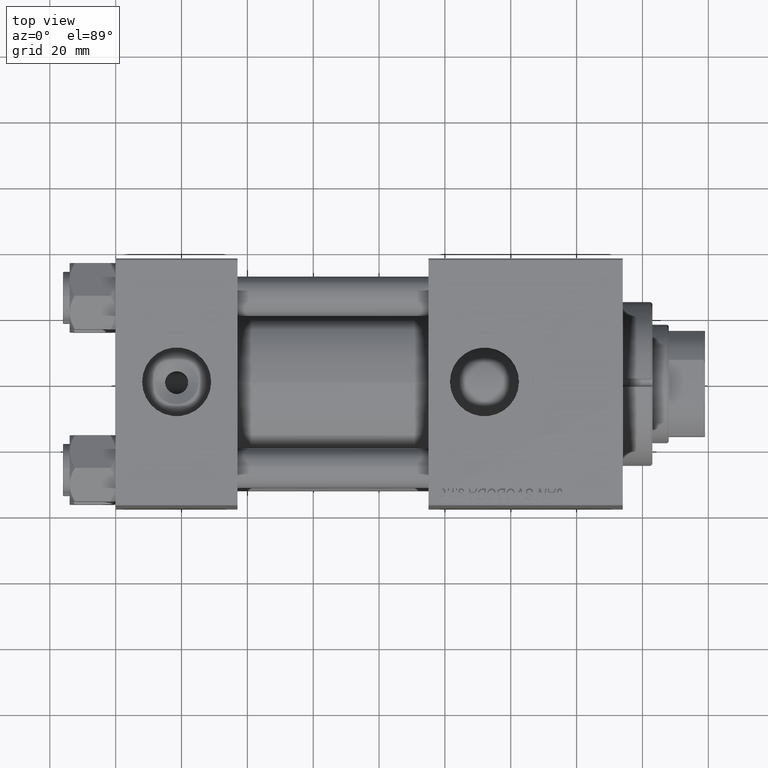
[diagram: clean part render]
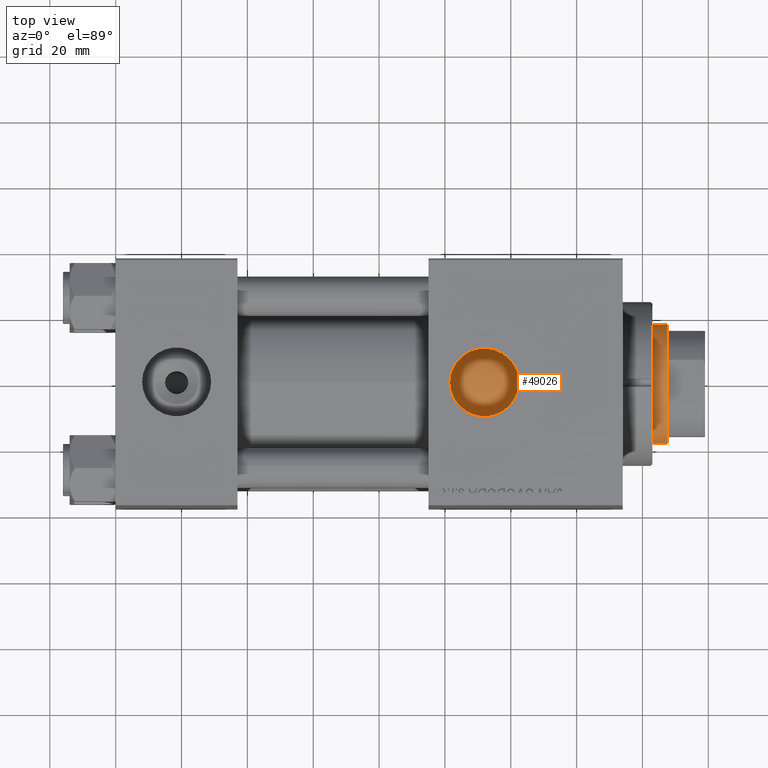
[diagram: same view with one face highlighted and labeled with its STEP entity id]
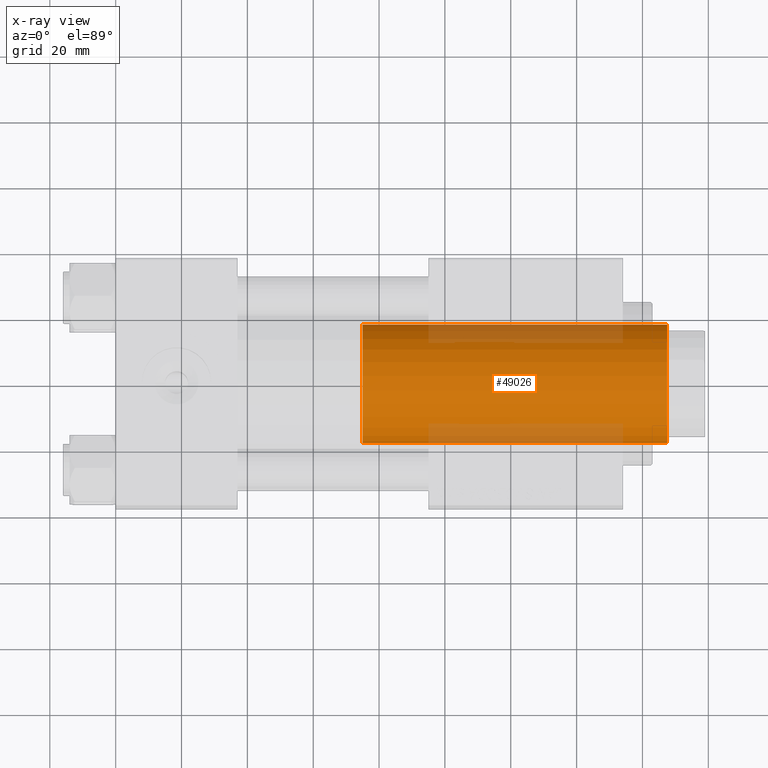
[diagram: x-ray of the same camera — body ghosted, the highlighted face saturated]
A machine part, top view. The second image highlights one B-rep face of the part: STEP entity #49026.
The next image is the same camera in x-ray: the body ghosted, the highlighted face saturated — about 20% of this face is hidden behind the body in this view.
In plain terms, the highlighted cylindrical surface (partial cylindrical patch) has radius 18 mm, axis along (-1, 0, 0).
Its self-contained STEP definition (entity closure, byte-faithful):
#719 = EDGE_CURVE ( 'NONE', #37747, #27761, #29014, .T. ) ;
#1033 = CARTESIAN_POINT ( 'NONE',  ( 18.00000000000000000, 2.204364238465235033E-15, 38.00000000000000000 ) ) ;
#1577 = CARTESIAN_POINT ( 'NONE',  ( -18.00000000000000000, 0.000000000000000000, 38.00000000000000000 ) ) ;
#6766 = EDGE_LOOP ( 'NONE', ( #46518, #40399, #31976, #34243 ) ) ;
#6811 = DIRECTION ( 'NONE',  ( -1.000000000000000000, 0.000000000000000000, 0.000000000000000000 ) ) ;
#7063 = FACE_OUTER_BOUND ( 'NONE', #6766, .T. ) ;
#8800 = DIRECTION ( 'NONE',  ( 0.000000000000000000, 0.000000000000000000, 1.000000000000000000 ) ) ;
#10140 = DIRECTION ( 'NONE',  ( -0.000000000000000000, -0.000000000000000000, -1.000000000000000000 ) ) ;
#13050 = CARTESIAN_POINT ( 'NONE',  ( 18.00000000000000000, 2.204364238465235033E-15, 130.5000000000000568 ) ) ;
#14871 = DIRECTION ( 'NONE',  ( -0.000000000000000000, -0.000000000000000000, -1.000000000000000000 ) ) ;
#17310 = CARTESIAN_POINT ( 'NONE',  ( -18.00000000000000000, 0.000000000000000000, 130.5000000000000568 ) ) ;
#17473 = EDGE_CURVE ( 'NONE', #37747, #31387, #38499, .T. ) ;
#17890 = AXIS2_PLACEMENT_3D ( 'NONE', #22123, #10140, #6811 ) ;
#18449 = CARTESIAN_POINT ( 'NONE',  ( -18.00000000000000000, 0.000000000000000000, 131.0000000000000000 ) ) ;
#20325 = CIRCLE ( 'NONE', #29263, 18.00000000000000000 ) ;
#20528 = DIRECTION ( 'NONE',  ( 1.000000000000000000, 0.000000000000000000, 0.000000000000000000 ) ) ;
#21370 = DIRECTION ( 'NONE',  ( -0.000000000000000000, -0.000000000000000000, -1.000000000000000000 ) ) ;
#21819 = VECTOR ( 'NONE', #14871, 1000.000000000000000 ) ;
#22123 = CARTESIAN_POINT ( 'NONE',  ( 0.000000000000000000, 0.000000000000000000, 131.0000000000000000 ) ) ;
#23535 = CARTESIAN_POINT ( 'NONE',  ( 0.000000000000000000, 0.000000000000000000, 130.5000000000000568 ) ) ;
#24029 = DIRECTION ( 'NONE',  ( 0.000000000000000000, 0.000000000000000000, -1.000000000000000000 ) ) ;
#27761 = VERTEX_POINT ( 'NONE', #1033 ) ;
#28101 = DIRECTION ( 'NONE',  ( 1.000000000000000000, 0.000000000000000000, 0.000000000000000000 ) ) ;
#29014 = LINE ( 'NONE', #40724, #43188 ) ;
#29263 = AXIS2_PLACEMENT_3D ( 'NONE', #43714, #8800, #20528 ) ;
#31387 = VERTEX_POINT ( 'NONE', #17310 ) ;
#31976 = ORIENTED_EDGE ( 'NONE', *, *, #41106, .T. ) ;
#33491 = LINE ( 'NONE', #18449, #21819 ) ;
#34243 = ORIENTED_EDGE ( 'NONE', *, *, #49649, .T. ) ;
#37747 = VERTEX_POINT ( 'NONE', #13050 ) ;
#38499 = CIRCLE ( 'NONE', #45807, 18.00000000000000000 ) ;
#38605 = VERTEX_POINT ( 'NONE', #1577 ) ;
#40399 = ORIENTED_EDGE ( 'NONE', *, *, #17473, .T. ) ;
#40724 = CARTESIAN_POINT ( 'NONE',  ( 18.00000000000000000, 2.204364238465235033E-15, 131.0000000000000000 ) ) ;
#41106 = EDGE_CURVE ( 'NONE', #31387, #38605, #33491, .T. ) ;
#43188 = VECTOR ( 'NONE', #21370, 1000.000000000000000 ) ;
#43714 = CARTESIAN_POINT ( 'NONE',  ( 0.000000000000000000, 0.000000000000000000, 38.00000000000000000 ) ) ;
#45556 = CYLINDRICAL_SURFACE ( 'NONE', #17890, 18.00000000000000000 ) ;
#45807 = AXIS2_PLACEMENT_3D ( 'NONE', #23535, #24029, #28101 ) ;
#46518 = ORIENTED_EDGE ( 'NONE', *, *, #719, .F. ) ;
#49026 = ADVANCED_FACE ( 'NONE', ( #7063 ), #45556, .T. ) ;
#49649 = EDGE_CURVE ( 'NONE', #38605, #27761, #20325, .T. ) ;